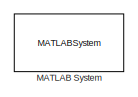
[diagram: root canvas - part 1/8, top left region]
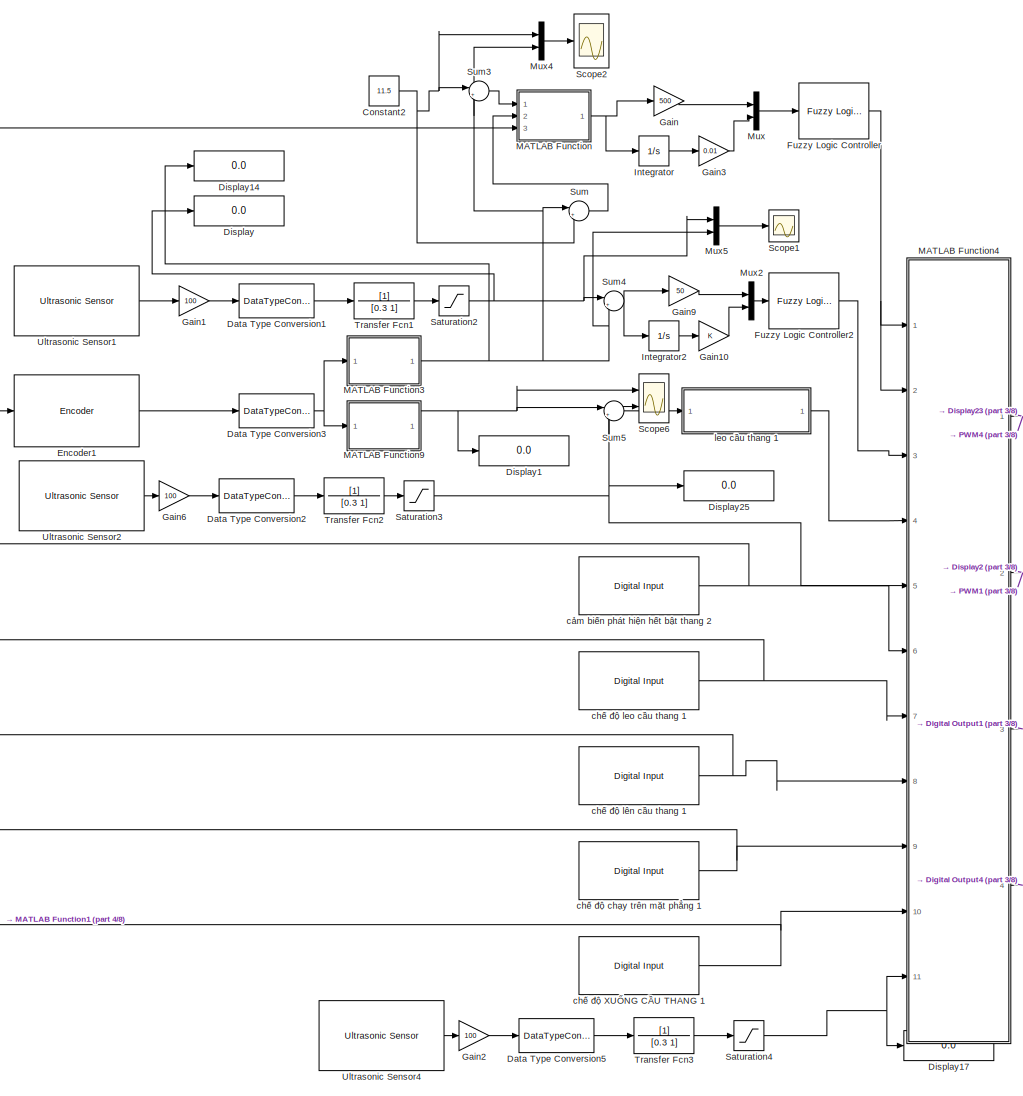
[diagram: root canvas - part 2/8, top right region]
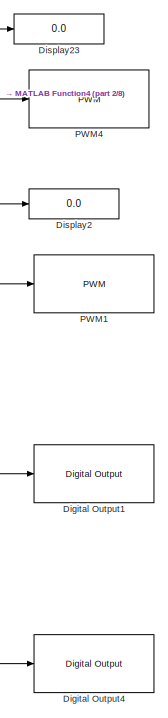
[diagram: root canvas - part 3/8, top right region]
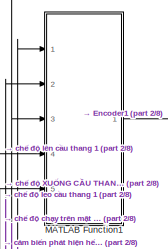
[diagram: root canvas - part 4/8, top center region]
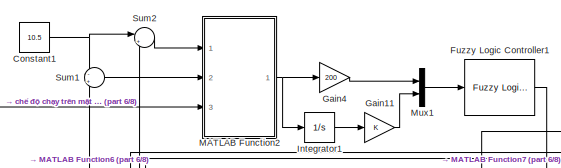
[diagram: root canvas - part 5/8, bottom right region]
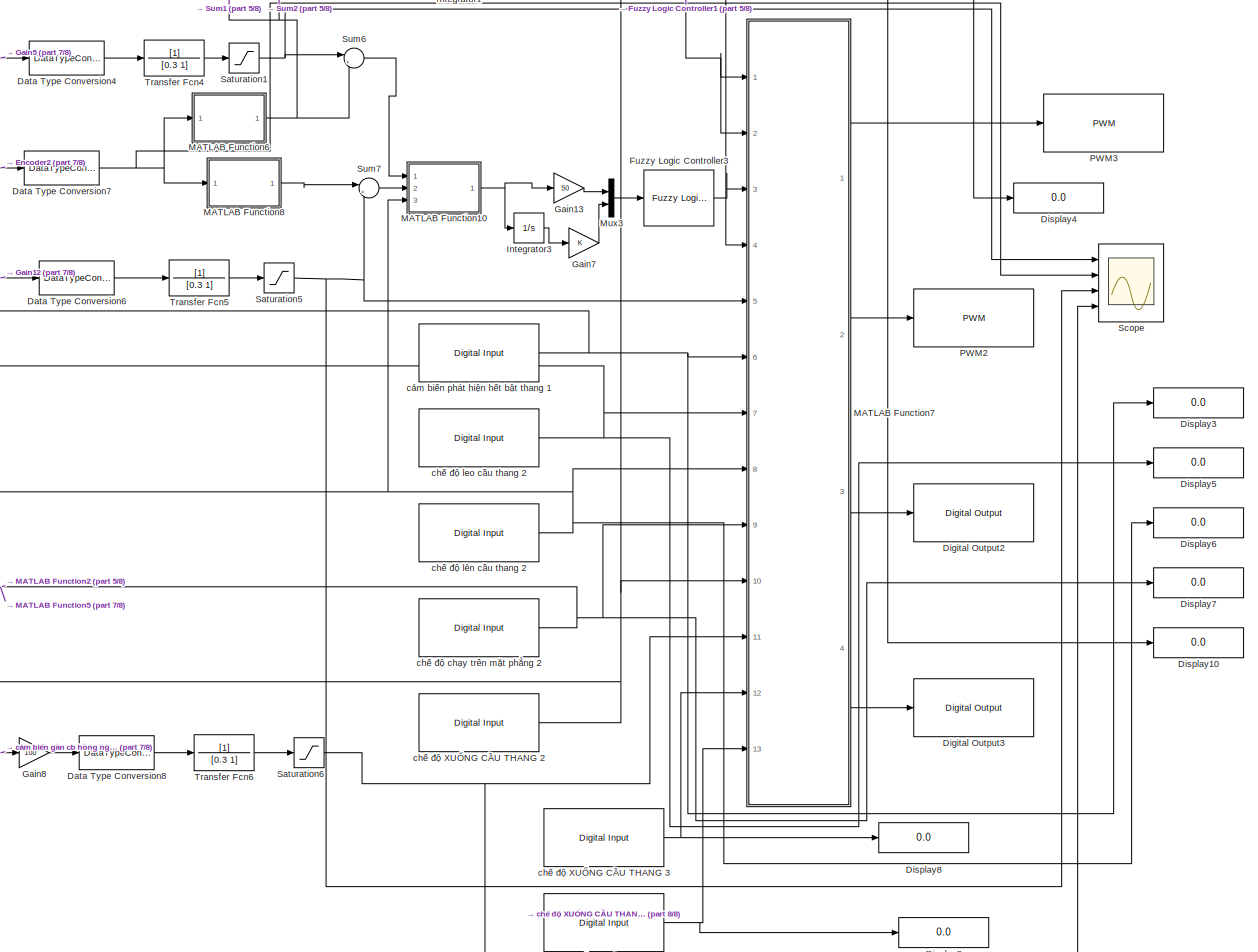
[diagram: root canvas - part 6/8, bottom right region]
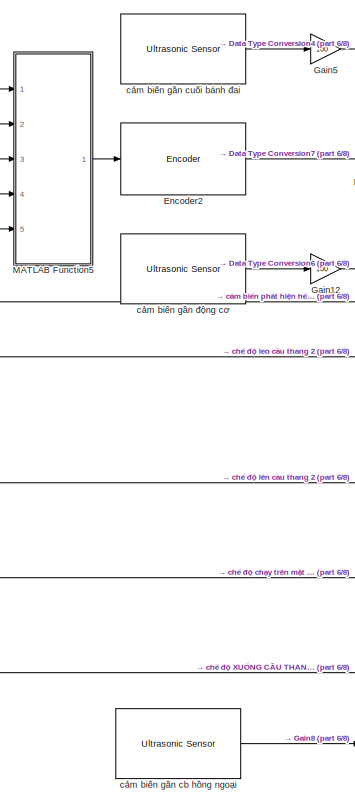
[diagram: root canvas - part 7/8, bottom center region]
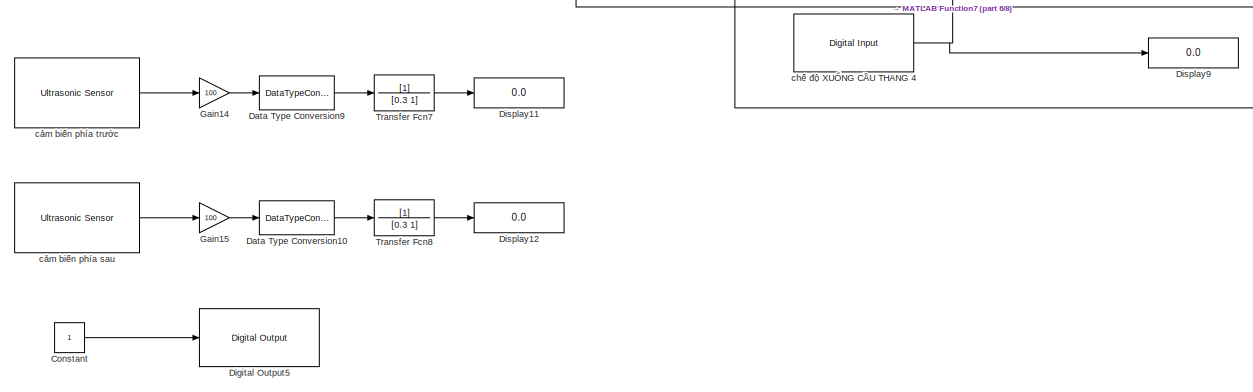
[diagram: root canvas - part 8/8, bottom right region]
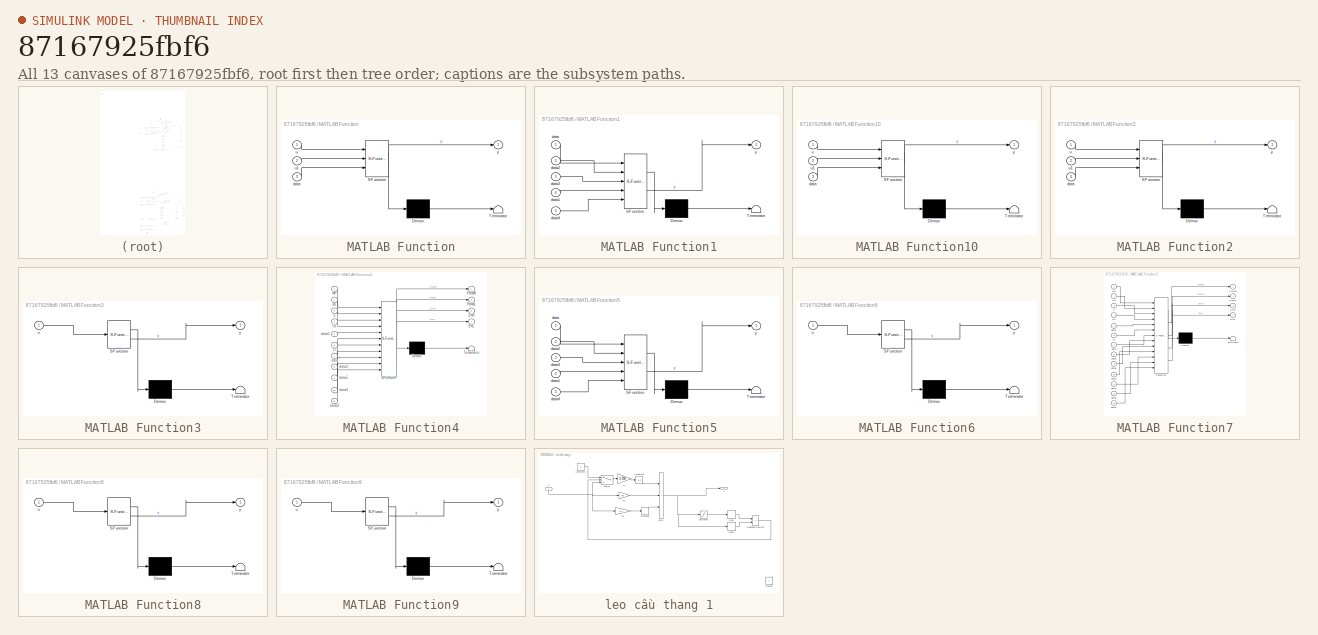
[diagram: thumbnail index - all 13 canvases of the model, root first then tree order]
MODEL slx_87167925fbf6
KIND model
CONFIG AbsTol = auto
CONFIG EnableMultiTasking = on
CONFIG FixedStep = auto
CONFIG MaxStep = auto
CONFIG MinStep = auto
CONFIG RelTol = 1e-3
CONFIG SampleTimeConstraint = Unconstrained
CONFIG SolverName = FixedStepAuto
CONFIG StartTime = 0.0
CONFIG StopTime = inf
BLOCK [Reference]   chế độ XUỐNG CẦU THANG 1  REF=arduinolib/Digital Input
  Commented = on
  Ports = [0, 1]
  SourceBlock = arduinolib/Digital Input
  SourceProductBaseCode = ARDUINO
  SourceType = Arduino Digital Input
BLOCK [Reference]   chế độ XUỐNG CẦU THANG 2  REF=arduinolib/Digital Input
  Ports = [0, 1]
  SourceBlock = arduinolib/Digital Input
  SourceProductBaseCode = ARDUINO
  SourceType = Arduino Digital Input
BLOCK [Reference]   chế độ XUỐNG CẦU THANG 3  REF=arduinolib/Digital Input
  Ports = [0, 1]
  SourceBlock = arduinolib/Digital Input
  SourceProductBaseCode = ARDUINO
  SourceType = Arduino Digital Input
BLOCK [Reference]   chế độ XUỐNG CẦU THANG 4  REF=arduinolib/Digital Input
  Ports = [0, 1]
  SourceBlock = arduinolib/Digital Input
  SourceProductBaseCode = ARDUINO
  SourceType = Arduino Digital Input
BLOCK [Reference]   chế độ chạy trên mặt phẳng 1  REF=arduinolib/Digital Input
  Commented = on
  Ports = [0, 1]
  SourceBlock = arduinolib/Digital Input
  SourceProductBaseCode = ARDUINO
  SourceType = Arduino Digital Input
BLOCK [Reference]   chế độ chạy trên mặt phẳng 2  REF=arduinolib/Digital Input
  Ports = [0, 1]
  SourceBlock = arduinolib/Digital Input
  SourceProductBaseCode = ARDUINO
  SourceType = Arduino Digital Input
BLOCK [Reference]   chế độ leo cầu thang 1  REF=arduinolib/Digital Input
  Commented = on
  Ports = [0, 1]
  SourceBlock = arduinolib/Digital Input
  SourceProductBaseCode = ARDUINO
  SourceType = Arduino Digital Input
BLOCK [Reference]   chế độ leo cầu thang 2  REF=arduinolib/Digital Input
  Ports = [0, 1]
  SourceBlock = arduinolib/Digital Input
  SourceProductBaseCode = ARDUINO
  SourceType = Arduino Digital Input
BLOCK [Reference]   chế độ lên cầu thang 1  REF=arduinolib/Digital Input
  Commented = on
  Ports = [0, 1]
  SourceBlock = arduinolib/Digital Input
  SourceProductBaseCode = ARDUINO
  SourceType = Arduino Digital Input
BLOCK [Reference]   chế độ lên cầu thang 2  REF=arduinolib/Digital Input
  Ports = [0, 1]
  SourceBlock = arduinolib/Digital Input
  SourceProductBaseCode = ARDUINO
  SourceType = Arduino Digital Input
BLOCK [Reference]   cảm biến phát hiện hết bật thang  1  REF=arduinolib/Digital Input
  Ports = [0, 1]
  SourceBlock = arduinolib/Digital Input
  SourceProductBaseCode = ARDUINO
  SourceType = Arduino Digital Input
BLOCK [Reference]   cảm biến phát hiện hết bật thang  2  REF=arduinolib/Digital Input
  Commented = on
  Ports = [0, 1]
  SourceBlock = arduinolib/Digital Input
  SourceProductBaseCode = ARDUINO
  SourceType = Arduino Digital Input
BLOCK [Constant] Constant
BLOCK [Constant] Constant1
  Value = 10.5
BLOCK [Constant] Constant2
  Commented = on
  Value = 11.5
BLOCK [DataTypeConversion] Data Type Conversion1
  Commented = on
  OutDataTypeStr = double
  RndMeth = Floor
  SaturateOnIntegerOverflow = off
BLOCK [DataTypeConversion] Data Type Conversion10
  OutDataTypeStr = double
  RndMeth = Floor
  SaturateOnIntegerOverflow = off
BLOCK [DataTypeConversion] Data Type Conversion2
  Commented = on
  OutDataTypeStr = double
  RndMeth = Floor
  SaturateOnIntegerOverflow = off
BLOCK [DataTypeConversion] Data Type Conversion3
  Commented = on
  OutDataTypeStr = double
  RndMeth = Floor
  SaturateOnIntegerOverflow = off
BLOCK [DataTypeConversion] Data Type Conversion4
  OutDataTypeStr = double
  RndMeth = Floor
  SaturateOnIntegerOverflow = off
BLOCK [DataTypeConversion] Data Type Conversion5
  Commented = on
  OutDataTypeStr = double
  RndMeth = Floor
  SaturateOnIntegerOverflow = off
BLOCK [DataTypeConversion] Data Type Conversion6
  OutDataTypeStr = double
  RndMeth = Floor
  SaturateOnIntegerOverflow = off
BLOCK [DataTypeConversion] Data Type Conversion7
  OutDataTypeStr = double
  RndMeth = Floor
  SaturateOnIntegerOverflow = off
BLOCK [DataTypeConversion] Data Type Conversion8
  OutDataTypeStr = double
  RndMeth = Floor
  SaturateOnIntegerOverflow = off
BLOCK [DataTypeConversion] Data Type Conversion9
  OutDataTypeStr = double
  RndMeth = Floor
  SaturateOnIntegerOverflow = off
BLOCK [Reference] Digital Output1  REF=arduinolib/Digital Output
  Commented = on
  Ports = [1]
  SourceBlock = arduinolib/Digital Output
  SourceProductBaseCode = ARDUINO
  SourceType = Arduino Digital Output
BLOCK [Reference] Digital Output2  REF=arduinolib/Digital Output
  Ports = [1]
  SourceBlock = arduinolib/Digital Output
  SourceProductBaseCode = ARDUINO
  SourceType = Arduino Digital Output
BLOCK [Reference] Digital Output3  REF=arduinolib/Digital Output
  Ports = [1]
  SourceBlock = arduinolib/Digital Output
  SourceProductBaseCode = ARDUINO
  SourceType = Arduino Digital Output
BLOCK [Reference] Digital Output4  REF=arduinolib/Digital Output
  Commented = on
  Ports = [1]
  SourceBlock = arduinolib/Digital Output
  SourceProductBaseCode = ARDUINO
  SourceType = Arduino Digital Output
BLOCK [Reference] Digital Output5  REF=arduinolib/Digital Output
  Ports = [1]
  SourceBlock = arduinolib/Digital Output
  SourceProductBaseCode = ARDUINO
  SourceType = Arduino Digital Output
BLOCK [Display] Display
  Commented = on
  Decimation = 1
  Ports = [1]
BLOCK [Display] Display1
  Commented = on
  Decimation = 1
  Ports = [1]
BLOCK [Display] Display10
  Decimation = 1
  Ports = [1]
BLOCK [Display] Display11
  Decimation = 1
  Ports = [1]
BLOCK [Display] Display12
  Decimation = 1
  Ports = [1]
BLOCK [Display] Display14
  Commented = on
  Decimation = 1
  Ports = [1]
BLOCK [Display] Display17
  Commented = on
  Decimation = 1
  Ports = [1]
BLOCK [Display] Display2
  Commented = on
  Decimation = 1
  Ports = [1]
BLOCK [Display] Display23
  Commented = on
  Decimation = 1
  Ports = [1]
BLOCK [Display] Display25
  Commented = on
  Decimation = 1
  Ports = [1]
BLOCK [Display] Display3
  Decimation = 1
  Ports = [1]
BLOCK [Display] Display4
  Decimation = 1
  Ports = [1]
BLOCK [Display] Display5
  Decimation = 1
  Ports = [1]
BLOCK [Display] Display6
  Decimation = 1
  Ports = [1]
BLOCK [Display] Display7
  Decimation = 1
  Ports = [1]
BLOCK [Display] Display8
  Decimation = 1
  Ports = [1]
BLOCK [Display] Display9
  Decimation = 1
  Ports = [1]
BLOCK [Reference] Encoder1  REF=arduinosensorlib/Encoder
  Commented = on
  Ports = [1, 1]
  SourceBlock = arduinosensorlib/Encoder
  SourceProductBaseCode = ARDUINO
  SourceType = Arduino Rotary Encoder
BLOCK [Reference] Encoder2  REF=arduinosensorlib/Encoder
  Ports = [1, 1]
  SourceBlock = arduinosensorlib/Encoder
  SourceProductBaseCode = ARDUINO
  SourceType = Arduino Rotary Encoder
BLOCK [Reference] Fuzzy Logic Controller  REF=fuzblock/Fuzzy Logic   (lib defined in mdl_858b3b3e7478)
Controller
  Commented = on
  Ports = [1, 1]
  SourceBlock = fuzblock/Fuzzy Logic \nController
  SourceProductBaseCode = FL
  SourceType = Fuzzy Inference System
BLOCK [Reference] Fuzzy Logic Controller1  REF=fuzblock/Fuzzy Logic   (lib defined in mdl_858b3b3e7478)
Controller
  Ports = [1, 1]
  SourceBlock = fuzblock/Fuzzy Logic \nController
  SourceProductBaseCode = FL
  SourceType = Fuzzy Inference System
BLOCK [Reference] Fuzzy Logic Controller2  REF=fuzblock/Fuzzy Logic   (lib defined in mdl_858b3b3e7478)
Controller
  Commented = on
  Ports = [1, 1]
  SourceBlock = fuzblock/Fuzzy Logic \nController
  SourceProductBaseCode = FL
  SourceType = Fuzzy Inference System
BLOCK [Reference] Fuzzy Logic Controller3  REF=fuzblock/Fuzzy Logic   (lib defined in mdl_858b3b3e7478)
Controller
  Ports = [1, 1]
  SourceBlock = fuzblock/Fuzzy Logic \nController
  SourceProductBaseCode = FL
  SourceType = Fuzzy Inference System
BLOCK [Gain] Gain
  Commented = on
  Gain = 500
BLOCK [Gain] Gain1
  Commented = on
  Gain = 100
BLOCK [Gain] Gain10
  Commented = on
BLOCK [Gain] Gain11
BLOCK [Gain] Gain12
  Gain = 100
BLOCK [Gain] Gain13
  Gain = 50
BLOCK [Gain] Gain14
  Gain = 100
BLOCK [Gain] Gain15
  Gain = 100
BLOCK [Gain] Gain2
  Commented = on
  Gain = 100
BLOCK [Gain] Gain3
  Commented = on
  Gain = 0.01
BLOCK [Gain] Gain4
  Gain = 200
BLOCK [Gain] Gain5
  Gain = 100
BLOCK [Gain] Gain6
  Commented = on
  Gain = 100
BLOCK [Gain] Gain7
BLOCK [Gain] Gain8
  Gain = 100
BLOCK [Gain] Gain9
  Commented = on
  Gain = 50
BLOCK [Integrator] Integrator
  Commented = on
  Ports = [1, 1]
BLOCK [Integrator] Integrator1
  Ports = [1, 1]
BLOCK [Integrator] Integrator2
  Commented = on
  Ports = [1, 1]
BLOCK [Integrator] Integrator3
  Ports = [1, 1]
BLOCK [SubSystem] MATLAB Function
  Commented = on
  ErrorFcn = Stateflow.Translate.translate
  PermitHierarchicalResolution = ExplicitOnly
  Ports = [3, 1]
  RequestExecContextInheritance = off
  SFBlockType = MATLAB Function
  TreatAsAtomicUnit = on
BLOCK [Demux] MATLAB Function/ Demux 
  Outputs = 1
  Ports = [1, 1]
BLOCK [S-Function] MATLAB Function/ SFunction 
  EnableBusSupport = on
  FunctionName = sf_sfun
  PortCounts = [3 2]
  Ports = [3, 2]
  SFcnIsStateOwnerBlock = off
  SFunctionDeploymentMode = off
  Tag = Stateflow S-Function 2
BLOCK [Terminator] MATLAB Function/ Terminator 
BLOCK [Inport] MATLAB Function/data
  Port = 3
BLOCK [Inport] MATLAB Function/u
BLOCK [Inport] MATLAB Function/u1
  Port = 2
BLOCK [Outport] MATLAB Function/y
BLOCK [SubSystem] MATLAB Function1
  Commented = on
  ErrorFcn = Stateflow.Translate.translate
  PermitHierarchicalResolution = ExplicitOnly
  Ports = [5, 1]
  RequestExecContextInheritance = off
  SFBlockType = MATLAB Function
  TreatAsAtomicUnit = on
BLOCK [Demux] MATLAB Function1/ Demux 
  Outputs = 1
  Ports = [1, 1]
BLOCK [S-Function] MATLAB Function1/ SFunction 
  EnableBusSupport = on
  FunctionName = sf_sfun
  PortCounts = [5 2]
  Ports = [5, 2]
  SFcnIsStateOwnerBlock = off
  SFunctionDeploymentMode = off
  Tag = Stateflow S-Function 1
BLOCK [Terminator] MATLAB Function1/ Terminator 
BLOCK [Inport] MATLAB Function1/data
BLOCK [Inport] MATLAB Function1/data1
  Port = 4
BLOCK [Inport] MATLAB Function1/data2
  Port = 2
BLOCK [Inport] MATLAB Function1/data3
  Port = 3
BLOCK [Inport] MATLAB Function1/data4
  Port = 5
BLOCK [Outport] MATLAB Function1/y
BLOCK [SubSystem] MATLAB Function10
  ErrorFcn = Stateflow.Translate.translate
  PermitHierarchicalResolution = ExplicitOnly
  Ports = [3, 1]
  RequestExecContextInheritance = off
  SFBlockType = MATLAB Function
  TreatAsAtomicUnit = on
BLOCK [Demux] MATLAB Function10/ Demux 
  Outputs = 1
  Ports = [1, 1]
BLOCK [S-Function] MATLAB Function10/ SFunction 
  EnableBusSupport = on
  FunctionName = sf_sfun
  PortCounts = [3 2]
  Ports = [3, 2]
  SFcnIsStateOwnerBlock = off
  SFunctionDeploymentMode = off
  Tag = Stateflow S-Function 11
BLOCK [Terminator] MATLAB Function10/ Terminator 
BLOCK [Inport] MATLAB Function10/data
  Port = 3
BLOCK [Inport] MATLAB Function10/u
BLOCK [Inport] MATLAB Function10/u1
  Port = 2
BLOCK [Outport] MATLAB Function10/y
BLOCK [SubSystem] MATLAB Function2
  ErrorFcn = Stateflow.Translate.translate
  PermitHierarchicalResolution = ExplicitOnly
  Ports = [3, 1]
  RequestExecContextInheritance = off
  SFBlockType = MATLAB Function
  TreatAsAtomicUnit = on
BLOCK [Demux] MATLAB Function2/ Demux 
  Outputs = 1
  Ports = [1, 1]
BLOCK [S-Function] MATLAB Function2/ SFunction 
  EnableBusSupport = on
  FunctionName = sf_sfun
  PortCounts = [3 2]
  Ports = [3, 2]
  SFcnIsStateOwnerBlock = off
  SFunctionDeploymentMode = off
  Tag = Stateflow S-Function 4
BLOCK [Terminator] MATLAB Function2/ Terminator 
BLOCK [Inport] MATLAB Function2/data
  Port = 3
BLOCK [Inport] MATLAB Function2/u
BLOCK [Inport] MATLAB Function2/u1
  Port = 2
BLOCK [Outport] MATLAB Function2/y
BLOCK [SubSystem] MATLAB Function3
  Commented = on
  ErrorFcn = Stateflow.Translate.translate
  PermitHierarchicalResolution = ExplicitOnly
  Ports = [1, 1]
  RequestExecContextInheritance = off
  SFBlockType = MATLAB Function
  TreatAsAtomicUnit = on
BLOCK [Demux] MATLAB Function3/ Demux 
  Outputs = 1
  Ports = [1, 1]
BLOCK [S-Function] MATLAB Function3/ SFunction 
  EnableBusSupport = on
  FunctionName = sf_sfun
  PortCounts = [1 2]
  Ports = [1, 2]
  SFcnIsStateOwnerBlock = off
  SFunctionDeploymentMode = off
  Tag = Stateflow S-Function 3
BLOCK [Terminator] MATLAB Function3/ Terminator 
BLOCK [Inport] MATLAB Function3/u
BLOCK [Outport] MATLAB Function3/y
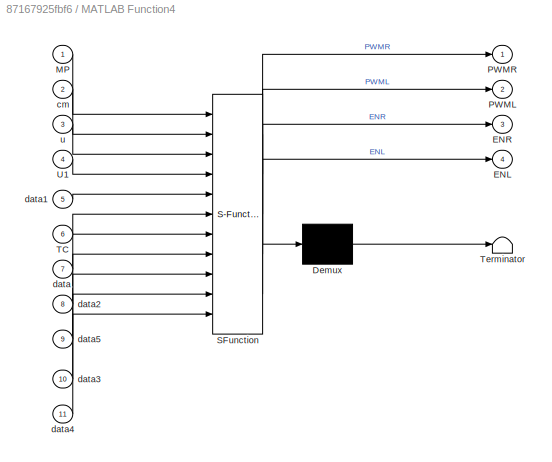
BLOCK [SubSystem] MATLAB Function4
  Commented = on
  ErrorFcn = Stateflow.Translate.translate
  PermitHierarchicalResolution = ExplicitOnly
  Ports = [11, 4]
  RequestExecContextInheritance = off
  SFBlockType = MATLAB Function
  TreatAsAtomicUnit = on
BLOCK [Demux] MATLAB Function4/ Demux 
  Outputs = 1
  Ports = [1, 1]
BLOCK [S-Function] MATLAB Function4/ SFunction 
  EnableBusSupport = on
  FunctionName = sf_sfun
  PortCounts = [11 5]
  Ports = [11, 5]
  SFcnIsStateOwnerBlock = off
  SFunctionDeploymentMode = off
  Tag = Stateflow S-Function 5
BLOCK [Terminator] MATLAB Function4/ Terminator 
BLOCK [Outport] MATLAB Function4/ENL
  Port = 4
BLOCK [Outport] MATLAB Function4/ENR
  Port = 3
BLOCK [Inport] MATLAB Function4/MP
BLOCK [Outport] MATLAB Function4/PWML
  Port = 2
BLOCK [Outport] MATLAB Function4/PWMR
BLOCK [Inport] MATLAB Function4/TC
  Port = 6
BLOCK [Inport] MATLAB Function4/U1
  Port = 4
BLOCK [Inport] MATLAB Function4/cm
  Port = 2
BLOCK [Inport] MATLAB Function4/data
  Port = 7
BLOCK [Inport] MATLAB Function4/data1
  Port = 5
BLOCK [Inport] MATLAB Function4/data2
  Port = 8
BLOCK [Inport] MATLAB Function4/data3
  Port = 10
BLOCK [Inport] MATLAB Function4/data4
  Port = 11
BLOCK [Inport] MATLAB Function4/data5
  Port = 9
BLOCK [Inport] MATLAB Function4/u
  Port = 3
BLOCK [SubSystem] MATLAB Function5
  ErrorFcn = Stateflow.Translate.translate
  PermitHierarchicalResolution = ExplicitOnly
  Ports = [5, 1]
  RequestExecContextInheritance = off
  SFBlockType = MATLAB Function
  TreatAsAtomicUnit = on
BLOCK [Demux] MATLAB Function5/ Demux 
  Outputs = 1
  Ports = [1, 1]
BLOCK [S-Function] MATLAB Function5/ SFunction 
  EnableBusSupport = on
  FunctionName = sf_sfun
  PortCounts = [5 2]
  Ports = [5, 2]
  SFcnIsStateOwnerBlock = off
  SFunctionDeploymentMode = off
  Tag = Stateflow S-Function 6
BLOCK [Terminator] MATLAB Function5/ Terminator 
BLOCK [Inport] MATLAB Function5/data
BLOCK [Inport] MATLAB Function5/data1
  Port = 4
BLOCK [Inport] MATLAB Function5/data2
  Port = 2
BLOCK [Inport] MATLAB Function5/data3
  Port = 3
BLOCK [Inport] MATLAB Function5/data4
  Port = 5
BLOCK [Outport] MATLAB Function5/y
BLOCK [SubSystem] MATLAB Function6
  ErrorFcn = Stateflow.Translate.translate
  PermitHierarchicalResolution = ExplicitOnly
  Ports = [1, 1]
  RequestExecContextInheritance = off
  SFBlockType = MATLAB Function
  TreatAsAtomicUnit = on
BLOCK [Demux] MATLAB Function6/ Demux 
  Outputs = 1
  Ports = [1, 1]
BLOCK [S-Function] MATLAB Function6/ SFunction 
  EnableBusSupport = on
  FunctionName = sf_sfun
  PortCounts = [1 2]
  Ports = [1, 2]
  SFcnIsStateOwnerBlock = off
  SFunctionDeploymentMode = off
  Tag = Stateflow S-Function 7
BLOCK [Terminator] MATLAB Function6/ Terminator 
BLOCK [Inport] MATLAB Function6/u
BLOCK [Outport] MATLAB Function6/y
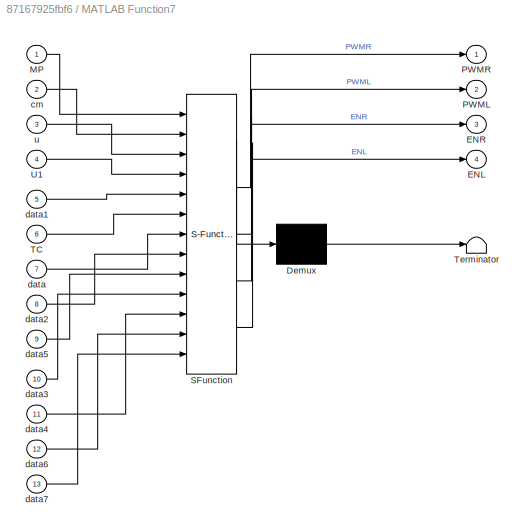
BLOCK [SubSystem] MATLAB Function7
  ErrorFcn = Stateflow.Translate.translate
  PermitHierarchicalResolution = ExplicitOnly
  Ports = [13, 4]
  RequestExecContextInheritance = off
  SFBlockType = MATLAB Function
  TreatAsAtomicUnit = on
BLOCK [Demux] MATLAB Function7/ Demux 
  Outputs = 1
  Ports = [1, 1]
BLOCK [S-Function] MATLAB Function7/ SFunction 
  EnableBusSupport = on
  FunctionName = sf_sfun
  PortCounts = [13 5]
  Ports = [13, 5]
  SFcnIsStateOwnerBlock = off
  SFunctionDeploymentMode = off
  Tag = Stateflow S-Function 8
BLOCK [Terminator] MATLAB Function7/ Terminator 
BLOCK [Outport] MATLAB Function7/ENL
  Port = 4
BLOCK [Outport] MATLAB Function7/ENR
  Port = 3
BLOCK [Inport] MATLAB Function7/MP
BLOCK [Outport] MATLAB Function7/PWML
  Port = 2
BLOCK [Outport] MATLAB Function7/PWMR
BLOCK [Inport] MATLAB Function7/TC
  Port = 6
BLOCK [Inport] MATLAB Function7/U1
  Port = 4
BLOCK [Inport] MATLAB Function7/cm
  Port = 2
BLOCK [Inport] MATLAB Function7/data
  Port = 7
BLOCK [Inport] MATLAB Function7/data1
  Port = 5
BLOCK [Inport] MATLAB Function7/data2
  Port = 8
BLOCK [Inport] MATLAB Function7/data3
  Port = 10
BLOCK [Inport] MATLAB Function7/data4
  Port = 11
BLOCK [Inport] MATLAB Function7/data5
  Port = 9
BLOCK [Inport] MATLAB Function7/data6
  Port = 12
BLOCK [Inport] MATLAB Function7/data7
  Port = 13
BLOCK [Inport] MATLAB Function7/u
  Port = 3
BLOCK [SubSystem] MATLAB Function8
  ErrorFcn = Stateflow.Translate.translate
  PermitHierarchicalResolution = ExplicitOnly
  Ports = [1, 1]
  RequestExecContextInheritance = off
  SFBlockType = MATLAB Function
  TreatAsAtomicUnit = on
BLOCK [Demux] MATLAB Function8/ Demux 
  Outputs = 1
  Ports = [1, 1]
BLOCK [S-Function] MATLAB Function8/ SFunction 
  EnableBusSupport = on
  FunctionName = sf_sfun
  PortCounts = [1 2]
  Ports = [1, 2]
  SFcnIsStateOwnerBlock = off
  SFunctionDeploymentMode = off
  Tag = Stateflow S-Function 9
BLOCK [Terminator] MATLAB Function8/ Terminator 
BLOCK [Inport] MATLAB Function8/u
BLOCK [Outport] MATLAB Function8/y
BLOCK [SubSystem] MATLAB Function9
  Commented = on
  ErrorFcn = Stateflow.Translate.translate
  PermitHierarchicalResolution = ExplicitOnly
  Ports = [1, 1]
  RequestExecContextInheritance = off
  SFBlockType = MATLAB Function
  TreatAsAtomicUnit = on
BLOCK [Demux] MATLAB Function9/ Demux 
  Outputs = 1
  Ports = [1, 1]
BLOCK [S-Function] MATLAB Function9/ SFunction 
  EnableBusSupport = on
  FunctionName = sf_sfun
  PortCounts = [1 2]
  Ports = [1, 2]
  SFcnIsStateOwnerBlock = off
  SFunctionDeploymentMode = off
  Tag = Stateflow S-Function 10
BLOCK [Terminator] MATLAB Function9/ Terminator 
BLOCK [Inport] MATLAB Function9/u
BLOCK [Outport] MATLAB Function9/y
BLOCK [MATLABSystem] MATLAB System
  Commented = on
  Encoder = 0
  MaskDisplay = disp('Encoder');\nport_label('output',1,'y');
  MaskType = Encoder_arduino
  PinA = 2
  PinB = 3
  Ports = [0, 1]
  SampleTime = 0.1
  System = Encoder_arduino
BLOCK [Mux] Mux
  Commented = on
  DisplayOption = bar
  Inputs = 2
  Ports = [2, 1]
BLOCK [Mux] Mux1
  DisplayOption = bar
  Inputs = 2
  Ports = [2, 1]
BLOCK [Mux] Mux2
  Commented = on
  DisplayOption = bar
  Inputs = 2
  Ports = [2, 1]
BLOCK [Mux] Mux3
  DisplayOption = bar
  Inputs = 2
  Ports = [2, 1]
BLOCK [Mux] Mux4
  Commented = on
  DisplayOption = bar
  Inputs = 2
  Ports = [2, 1]
BLOCK [Mux] Mux5
  Commented = on
  DisplayOption = bar
  Inputs = 2
  Ports = [2, 1]
BLOCK [Reference] PWM1  REF=arduinolib/PWM
  Commented = on
  Ports = [1]
  SourceBlock = arduinolib/PWM
  SourceProductBaseCode = ARDUINO
  SourceType = Arduino PWM
BLOCK [Reference] PWM2  REF=arduinolib/PWM
  Ports = [1]
  SourceBlock = arduinolib/PWM
  SourceProductBaseCode = ARDUINO
  SourceType = Arduino PWM
BLOCK [Reference] PWM3  REF=arduinolib/PWM
  Ports = [1]
  SourceBlock = arduinolib/PWM
  SourceProductBaseCode = ARDUINO
  SourceType = Arduino PWM
BLOCK [Reference] PWM4  REF=arduinolib/PWM
  Commented = on
  Ports = [1]
  SourceBlock = arduinolib/PWM
  SourceProductBaseCode = ARDUINO
  SourceType = Arduino PWM
BLOCK [Saturate] Saturation1
  LowerLimit = -25
  UpperLimit = 25
BLOCK [Saturate] Saturation2
  Commented = on
  LowerLimit = -25
  UpperLimit = 25
BLOCK [Saturate] Saturation3
  Commented = on
  LowerLimit = -30
  UpperLimit = 30
BLOCK [Saturate] Saturation4
  Commented = on
  LowerLimit = -150
  UpperLimit = 150
BLOCK [Saturate] Saturation5
  LowerLimit = -30
  UpperLimit = 30
BLOCK [Saturate] Saturation6
  LowerLimit = -150
  UpperLimit = 150
BLOCK [Scope] Scope
  Floating = off
  NumInputPorts = 4
  Ports = [4]
  ScopeSpecificationString = Simulink.scopes.TimeScopeBlockCfg('CurrentConfiguration', extmgr.ConfigurationSet(extmgr.Configuration('Core','General UI',true),extmgr.Configuration('Core','Source UI',true),extmgr.Configuration('Sources','WiredSimulink',true,'DataLoggingVariableName','ScopeData1'),extmgr.Configuration('Visuals','Time Domain',true,'SerializedDisplays',{struct('MinYLimReal','-12.01572','MaxYLimReal','88.14145','YL...<+1482ch>
BLOCK [Scope] Scope1
  Commented = on
  Floating = off
  NumInputPorts = 1
  Ports = [1]
  ScopeSpecificationString = Simulink.scopes.TimeScopeBlockCfg('CurrentConfiguration', extmgr.ConfigurationSet(extmgr.Configuration('Core','General UI',true,'FigureColor',[1 1 1]),extmgr.Configuration('Core','Source UI',true),extmgr.Configuration('Sources','WiredSimulink',true,'DataLoggingVariableName','xa1','DataLogging',true),extmgr.Configuration('Visuals','Time Domain',true,'SerializedDisplays',{struct('MinYLimReal','-2.22...<+1885ch>
BLOCK [Scope] Scope2
  Commented = on
  Floating = off
  NumInputPorts = 1
  Ports = [1]
  ScopeSpecificationString = Simulink.scopes.TimeScopeBlockCfg('CurrentConfiguration', extmgr.ConfigurationSet(extmgr.Configuration('Core','General UI',true,'FigureColor',[1 1 1]),extmgr.Configuration('Core','Source UI',true),extmgr.Configuration('Sources','WiredSimulink',true,'DataLoggingVariableName','mp1','DataLogging',true,'DataLoggingSaveFormat','StructureWithTime'),extmgr.Configuration('Visuals','Time Domain',true,'Seri...<+1868ch>
BLOCK [Scope] Scope6
  Commented = on
  Floating = off
  NumInputPorts = 2
  Ports = [2]
  ScopeSpecificationString = Simulink.scopes.TimeScopeBlockCfg('CurrentConfiguration', extmgr.ConfigurationSet(extmgr.Configuration('Core','General UI',true),extmgr.Configuration('Core','Source UI',true),extmgr.Configuration('Sources','WiredSimulink',true,'DataLoggingVariableName','ScopeData6'),extmgr.Configuration('Visuals','Time Domain',true),extmgr.Configuration('Tools','Plot Navigation',true),extmgr.Configuration('Tools',...<+40ch>
BLOCK [Sum] Sum
  Commented = on
  Inputs = |+-
  Ports = [2, 1]
BLOCK [Sum] Sum1
  Inputs = -+
  Ports = [2, 1]
BLOCK [Sum] Sum2
  Inputs = |+-
  Ports = [2, 1]
BLOCK [Sum] Sum3
  Commented = on
  Inputs = |+-
  Ports = [2, 1]
BLOCK [Sum] Sum4
  Commented = on
  Inputs = |+-
  Ports = [2, 1]
BLOCK [Sum] Sum5
  Commented = on
  Inputs = |+-
  Ports = [2, 1]
BLOCK [Sum] Sum6
  Inputs = |+-
  Ports = [2, 1]
BLOCK [Sum] Sum7
  Inputs = |+-
  Ports = [2, 1]
BLOCK [TransferFcn] Transfer Fcn1
  Commented = on
  Denominator = [0.3 1]
BLOCK [TransferFcn] Transfer Fcn2
  Commented = on
  Denominator = [0.3 1]
BLOCK [TransferFcn] Transfer Fcn3
  Commented = on
  Denominator = [0.3 1]
BLOCK [TransferFcn] Transfer Fcn4
  Denominator = [0.3 1]
  ParameterTunability = Optimized
BLOCK [TransferFcn] Transfer Fcn5
  Denominator = [0.3 1]
BLOCK [TransferFcn] Transfer Fcn6
  Denominator = [0.3 1]
BLOCK [TransferFcn] Transfer Fcn7
  Denominator = [0.3 1]
BLOCK [TransferFcn] Transfer Fcn8
  Denominator = [0.3 1]
BLOCK [Reference] Ultrasonic Sensor1  REF=arduinosensorlib/Ultrasonic Sensor
  Commented = on
  Ports = [0, 1]
  SourceBlock = arduinosensorlib/Ultrasonic Sensor
  SourceProductBaseCode = ARDUINO
  SourceType = Arduino Ultrasonic Sensor
BLOCK [Reference] Ultrasonic Sensor2  REF=arduinosensorlib/Ultrasonic Sensor
  Commented = on
  Ports = [0, 1]
  SourceBlock = arduinosensorlib/Ultrasonic Sensor
  SourceProductBaseCode = ARDUINO
  SourceType = Arduino Ultrasonic Sensor
BLOCK [Reference] Ultrasonic Sensor4  REF=arduinosensorlib/Ultrasonic Sensor
  Commented = on
  Ports = [0, 1]
  SourceBlock = arduinosensorlib/Ultrasonic Sensor
  SourceProductBaseCode = ARDUINO
  SourceType = Arduino Ultrasonic Sensor
BLOCK [Reference] cảm biến gần cb hồng ngoại  REF=arduinosensorlib/Ultrasonic Sensor
  Ports = [0, 1]
  SourceBlock = arduinosensorlib/Ultrasonic Sensor
  SourceProductBaseCode = ARDUINO
  SourceType = Arduino Ultrasonic Sensor
BLOCK [Reference] cảm biến gần cuối bánh đai  REF=arduinosensorlib/Ultrasonic Sensor
  Ports = [0, 1]
  SourceBlock = arduinosensorlib/Ultrasonic Sensor
  SourceProductBaseCode = ARDUINO
  SourceType = Arduino Ultrasonic Sensor
BLOCK [Reference] cảm biến gần động cơ  REF=arduinosensorlib/Ultrasonic Sensor
  Ports = [0, 1]
  SourceBlock = arduinosensorlib/Ultrasonic Sensor
  SourceProductBaseCode = ARDUINO
  SourceType = Arduino Ultrasonic Sensor
BLOCK [Reference] cảm biến phía sau  REF=arduinosensorlib/Ultrasonic Sensor
  Ports = [0, 1]
  SourceBlock = arduinosensorlib/Ultrasonic Sensor
  SourceProductBaseCode = ARDUINO
  SourceType = Arduino Ultrasonic Sensor
BLOCK [Reference] cảm biến phía trước  REF=arduinosensorlib/Ultrasonic Sensor
  Ports = [0, 1]
  SourceBlock = arduinosensorlib/Ultrasonic Sensor
  SourceProductBaseCode = ARDUINO
  SourceType = Arduino Ultrasonic Sensor
BLOCK [SubSystem] leo cầu thang 1
  Commented = on
  Ports = [1, 1]
  RequestExecContextInheritance = off
BLOCK [Constant] leo cầu thang 1/Constant3
  Value = 0
BLOCK [Delay] leo cầu thang 1/Delay
  DelayLength = 1
  InitialCondition = 0
  InputPortMap = u0
  Ports = [1, 1]
  SampleTime = 0.1
BLOCK [Delay] leo cầu thang 1/Delay1
  DelayLength = 1
  InitialCondition = 0
  InputPortMap = u0
  Ports = [1, 1]
  SampleTime = 0.1
BLOCK [Derivative] leo cầu thang 1/Derivative
BLOCK [Integrator] leo cầu thang 1/Integrator
  Ports = [1, 1]
BLOCK [Product] leo cầu thang 1/Product
  Commented = on
  Ports = [2, 1]
BLOCK [RelationalOperator] leo cầu thang 1/Relational Operator
  InputSameDT = off
  Operator = ~=
  OutDataTypeStr = boolean
  Ports = [2, 1]
  RndMeth = Simplest
BLOCK [Saturate] leo cầu thang 1/Saturation
  LowerLimit = -10
  UpperLimit = 230
BLOCK [Sum] leo cầu thang 1/Sum2
  IconShape = rectangular
  InputSameDT = on
  Inputs = +++
  OutDataTypeStr = Inherit: Same as first input
  Ports = [3, 1]
  SaturateOnIntegerOverflow = on
BLOCK [Switch] leo cầu thang 1/Switch
  Criteria = u2 > Threshold
  InputSameDT = off
  SaturateOnIntegerOverflow = off
BLOCK [Inport] leo cầu thang 1/h
  NameLocation = right
BLOCK [Gain] leo cầu thang 1/kd 
  Gain = 0.1
  OutDataTypeStr = double
  ParamDataTypeStr = double
BLOCK [Gain] leo cầu thang 1/ki
  Gain = 0.7298
  OutDataTypeStr = Inherit: Same as input
  ParamDataTypeStr = Inherit: Same as input
  SaturateOnIntegerOverflow = on
BLOCK [Gain] leo cầu thang 1/kp 
  Gain = 50
  OutDataTypeStr = double
  ParamDataTypeStr = double
BLOCK [Outport] leo cầu thang 1/u
NET   chế độ XUỐNG CẦU THANG 1:1 -> MATLAB Function1:5, MATLAB Function4:10
NET   chế độ XUỐNG CẦU THANG 2:1 -> Display10:1, MATLAB Function5:5, MATLAB Function7:10
NET   chế độ XUỐNG CẦU THANG 3:1 -> Display8:1, MATLAB Function7:12
NET   chế độ XUỐNG CẦU THANG 4:1 -> Display9:1, MATLAB Function7:13
NET   chế độ chạy trên mặt phẳng 1:1 -> MATLAB Function1:3, MATLAB Function4:9, MATLAB Function:3
NET   chế độ chạy trên mặt phẳng 2:1 -> Display7:1, MATLAB Function2:3, MATLAB Function5:3, MATLAB Function7:9
NET   chế độ leo cầu thang 1:1 -> MATLAB Function1:2, MATLAB Function4:7
NET   chế độ leo cầu thang 2:1 -> Display5:1, MATLAB Function5:2, MATLAB Function7:7
NET   chế độ lên cầu thang 1:1 -> MATLAB Function1:4, MATLAB Function4:8
NET   chế độ lên cầu thang 2:1 -> Display6:1, MATLAB Function10:3, MATLAB Function5:4, MATLAB Function7:8
NET   cảm biến phát hiện hết bật thang  1:1 -> Display3:1, MATLAB Function5:1, MATLAB Function7:6
NET   cảm biến phát hiện hết bật thang  2:1 -> MATLAB Function1:1, MATLAB Function4:6
NET Constant1:1 -> Sum1:1, Sum2:1
NET Constant2:1 -> Mux4:1, Sum3:1, Sum:2
LINE Constant:1 -> Digital Output5:1
LINE Data Type Conversion10:1 -> Transfer Fcn8:1
LINE Data Type Conversion1:1 -> Transfer Fcn1:1
LINE Data Type Conversion2:1 -> Transfer Fcn2:1
NET Data Type Conversion3:1 -> MATLAB Function3:1, MATLAB Function9:1
LINE Data Type Conversion4:1 -> Transfer Fcn4:1
LINE Data Type Conversion5:1 -> Transfer Fcn3:1
LINE Data Type Conversion6:1 -> Transfer Fcn5:1
NET Data Type Conversion7:1 -> MATLAB Function6:1, MATLAB Function8:1, Scope:2
LINE Data Type Conversion8:1 -> Transfer Fcn6:1
LINE Data Type Conversion9:1 -> Transfer Fcn7:1
LINE Encoder1:1 -> Data Type Conversion3:1
LINE Encoder2:1 -> Data Type Conversion7:1
NET Fuzzy Logic Controller1:1 -> MATLAB Function7:1, MATLAB Function7:2
LINE Fuzzy Logic Controller2:1 -> MATLAB Function4:3
NET Fuzzy Logic Controller3:1 -> Display4:1, MATLAB Function7:3, MATLAB Function7:4
NET Fuzzy Logic Controller:1 -> MATLAB Function4:1, MATLAB Function4:2
LINE Gain10:1 -> Mux2:2
LINE Gain11:1 -> Mux1:2
LINE Gain12:1 -> Data Type Conversion6:1
LINE Gain13:1 -> Mux3:1
LINE Gain14:1 -> Data Type Conversion9:1
LINE Gain15:1 -> Data Type Conversion10:1
LINE Gain1:1 -> Data Type Conversion1:1
LINE Gain2:1 -> Data Type Conversion5:1
LINE Gain3:1 -> Mux:2
LINE Gain4:1 -> Mux1:1
LINE Gain5:1 -> Data Type Conversion4:1
LINE Gain6:1 -> Data Type Conversion2:1
LINE Gain7:1 -> Mux3:2
LINE Gain8:1 -> Data Type Conversion8:1
LINE Gain9:1 -> Mux2:1
LINE Gain:1 -> Mux:1
LINE Integrator1:1 -> Gain11:1
LINE Integrator2:1 -> Gain10:1
LINE Integrator3:1 -> Gain7:1
LINE Integrator:1 -> Gain3:1
NET MATLAB Function10:1 -> Gain13:1, Integrator3:1
LINE MATLAB Function1:1 -> Encoder1:1
NET MATLAB Function2:1 -> Gain4:1, Integrator1:1
NET MATLAB Function3:1 -> Display14:1, Mux4:2, Mux5:2, Sum3:2, Sum4:2, Sum:1
NET MATLAB Function4:1 -> Display23:1, PWM4:1
NET MATLAB Function4:2 -> Display2:1, PWM1:1
LINE MATLAB Function4:3 -> Digital Output1:1
LINE MATLAB Function4:4 -> Digital Output4:1
LINE MATLAB Function5:1 -> Encoder2:1
NET MATLAB Function6:1 -> Sum1:2, Sum2:2, Sum6:2
LINE MATLAB Function7:1 -> PWM3:1
LINE MATLAB Function7:2 -> PWM2:1
LINE MATLAB Function7:3 -> Digital Output2:1
LINE MATLAB Function7:4 -> Digital Output3:1
LINE MATLAB Function8:1 -> Sum7:1
NET MATLAB Function9:1 -> Display1:1, Scope6:1, Sum5:1
NET MATLAB Function:1 -> Gain:1, Integrator:1
LINE Mux1:1 -> Fuzzy Logic Controller1:1
LINE Mux2:1 -> Fuzzy Logic Controller2:1
LINE Mux3:1 -> Fuzzy Logic Controller3:1
LINE Mux4:1 -> Scope2:1
LINE Mux5:1 -> Scope1:1
LINE Mux:1 -> Fuzzy Logic Controller:1
NET Saturation1:1 -> Scope:1, Sum6:1
NET Saturation2:1 -> Display:1, Mux5:1, Sum4:1
NET Saturation3:1 -> Display25:1, MATLAB Function4:5, Scope6:2, Sum5:2
NET Saturation4:1 -> Display17:1, MATLAB Function4:11
NET Saturation5:1 -> MATLAB Function7:5, Scope:3, Sum7:2
NET Saturation6:1 -> MATLAB Function7:11, Scope:4
LINE Sum1:1 -> MATLAB Function2:2
LINE Sum2:1 -> MATLAB Function2:1
LINE Sum3:1 -> MATLAB Function:1
NET Sum4:1 -> Gain9:1, Integrator2:1
LINE Sum5:1 -> leo cầu thang 1:1
LINE Sum6:1 -> MATLAB Function10:1
LINE Sum7:1 -> MATLAB Function10:2
LINE Sum:1 -> MATLAB Function:2
LINE Transfer Fcn1:1 -> Saturation2:1
LINE Transfer Fcn2:1 -> Saturation3:1
LINE Transfer Fcn3:1 -> Saturation4:1
LINE Transfer Fcn4:1 -> Saturation1:1
LINE Transfer Fcn5:1 -> Saturation5:1
LINE Transfer Fcn6:1 -> Saturation6:1
LINE Transfer Fcn7:1 -> Display11:1
LINE Transfer Fcn8:1 -> Display12:1
LINE Ultrasonic Sensor1:1 -> Gain1:1
LINE Ultrasonic Sensor2:1 -> Gain6:1
LINE Ultrasonic Sensor4:1 -> Gain2:1
LINE cảm biến gần cb hồng ngoại:1 -> Gain8:1
LINE cảm biến gần cuối bánh đai:1 -> Gain5:1
LINE cảm biến gần động cơ:1 -> Gain12:1
LINE cảm biến phía sau:1 -> Gain15:1
LINE cảm biến phía trước:1 -> Gain14:1
LINE leo cầu thang 1/Constant3:1 -> leo cầu thang 1/Switch:1
LINE leo cầu thang 1/Delay1:1 -> leo cầu thang 1/Relational Operator:2
LINE leo cầu thang 1/Delay:1 -> leo cầu thang 1/Relational Operator:1
LINE leo cầu thang 1/Derivative:1 -> leo cầu thang 1/Sum2:3
LINE leo cầu thang 1/Integrator:1 -> leo cầu thang 1/Sum2:1
LINE leo cầu thang 1/Relational Operator:1 -> leo cầu thang 1/Switch:2
LINE leo cầu thang 1/Saturation:1 -> leo cầu thang 1/Delay:1
NET leo cầu thang 1/Sum2:1 -> leo cầu thang 1/Delay1:1, leo cầu thang 1/Saturation:1, leo cầu thang 1/u:1
LINE leo cầu thang 1/Switch:1 -> leo cầu thang 1/ki:1
NET leo cầu thang 1/h:1 -> leo cầu thang 1/Switch:3, leo cầu thang 1/kd :1, leo cầu thang 1/kp :1
LINE leo cầu thang 1/kd :1 -> leo cầu thang 1/Derivative:1
LINE leo cầu thang 1/ki:1 -> leo cầu thang 1/Integrator:1
LINE leo cầu thang 1/kp :1 -> leo cầu thang 1/Sum2:2
LINE leo cầu thang 1:1 -> MATLAB Function4:4
note: NET lines group one-source signal fan-out (src -> all destinations, sorted); 1:1 wires keep LINE
CHART MATLAB Function5 states=1 transitions=1
  STATE_LABEL 'eML_blk_kernel()'
  STATE_LABEL 'SCRIPT:\nfunction y = fcn(data, data2, data3, data1, data4)\n if data <=0 && data2 >=1 && data1 <=0  % lên \n     y=0;\n elseif data3 >=1 && data2 <=0 && data1>=1  % mặt phẳng \n     y=0;\n elseif data4 <=0 && data3 <=0 && data1 >=1   % xuống \n     y=0;\n else \n     y=1;\n end'
CHART MATLAB Function6 states=1 transitions=1
  STATE_LABEL 'eML_blk_kernel()'
  STATE_LABEL 'SCRIPT:\nfunction y = fcn(u)\n\ny = sqrt(48^2 + 14^2 - 2*48*14*cosd((u/400)*360)) - 24.5;\n'
CHART MATLAB Function7 states=1 transitions=1
  STATE_LABEL 'eML_blk_kernel()'
  STATE_LABEL 'SCRIPT:\nfunction [PWMR,PWML,ENR,ENL]=MATLAB_Function4(MP,cm, u,U1,data1, TC,data,data2 ,data5, data3,data4, data6, data7) \nENR = 1;\nENL = 1;\n% chế độ leo cầu thang\n  % lên bật cuối cầu thang \n   if data >=1 && TC <=0 && data2 <=0 && data1>=7   % data2 chế độ lên cầu thang, data là chế độ leo cầu thang  \n      PWMR = u ;PWML = 0;\n   elseif  data1 >=0 && data1 <=6 && data3 >=1 && TC <=0 && data4 >=2...<+608ch>'
CHART MATLAB Function8 states=1 transitions=1
  STATE_LABEL 'eML_blk_kernel()'
  STATE_LABEL 'SCRIPT:\nfunction y = fcn(u)\n\ny = sqrt(48^2 + 14^2 - 2*48*14*cosd((u/400)*360)) - 27;\n'
CHART MATLAB Function9 states=1 transitions=1
  STATE_LABEL 'eML_blk_kernel()'
  STATE_LABEL 'SCRIPT:\nfunction y = fcn(u)\n\ny = sqrt(48^2 + 14^2 - 2*48*14*cosd((u/400)*360)) - 29;\n'
CHART MATLAB Function10 states=1 transitions=1
  STATE_LABEL 'eML_blk_kernel()'
  STATE_LABEL 'SCRIPT:\nfunction y = fcn(u,u1, data)\n if data <=0 \n     y=u;\n else \n     y= u1;\n end'
CHART MATLAB Function1 states=1 transitions=1
  STATE_LABEL 'eML_blk_kernel()'
  STATE_LABEL 'SCRIPT:\nfunction y = fcn(data, data2, data3, data1, data4)\n if data <=0 && data2 >=1 && data1 <=0  % lên \n     y=0;\n elseif data3 >=1 && data2 <=0 && data1>=1  % mặt phẳng \n     y=0;\n elseif data4 <=0 && data3 <=0 && data1 >=1   % xuống \n     y=0;\n else \n     y=1;\n end'
CHART MATLAB Function states=1 transitions=1
  STATE_LABEL 'eML_blk_kernel()'
  STATE_LABEL 'SCRIPT:\nfunction  y= fcn(u,u1, data)\n\n if data >=1\n     y=u;\n else\n     y=u1;\n end\n'
CHART MATLAB Function3 states=1 transitions=1
  STATE_LABEL 'eML_blk_kernel()'
  STATE_LABEL 'SCRIPT:\nfunction y = fcn(u)\n\ny = sqrt(48^2 + 14^2 - 2*48*14*cosd((u/400)*360)) - 24;\n'
CHART MATLAB Function2 states=1 transitions=1
  STATE_LABEL 'eML_blk_kernel()'
  STATE_LABEL 'SCRIPT:\nfunction  y= fcn(u,u1, data)\n\n if data >=1\n     y=u;\n else\n     y=u1;\n end\n'
CHART MATLAB Function4 states=1 transitions=1
  STATE_LABEL 'eML_blk_kernel()'
  STATE_LABEL 'SCRIPT:\nfunction [PWMR,PWML,ENR,ENL]=MATLAB_Function4(MP,cm, u,U1,data1, TC,data,data2 ,data5, data3,data4) \nENR = 1;\nENL = 1;\n% chế độ leo cầu thang\n  % lên bật cuối cầu thang \n   if data >=1 && TC <=0 && data2 <=0&& data1>=7   % data2 chế độ lên cầu thang, data là chế độ leo cầu thang  \n      PWMR = u ;PWML = 0;\n   elseif  data1 >=0 && data1 <=6 && data3 >=1 && TC <=0 && data4 >=25 % bật data ch...<+603ch>'
CHART  states=0 transitions=0
CHART  states=0 transitions=0
CHART  states=0 transitions=0
CHART  states=0 transitions=0
CHART  states=0 transitions=0
CHART  states=0 transitions=0
CHART  states=0 transitions=0
CHART  states=0 transitions=0
CHART  states=0 transitions=0
CHART  states=0 transitions=0
CHART  states=0 transitions=0
